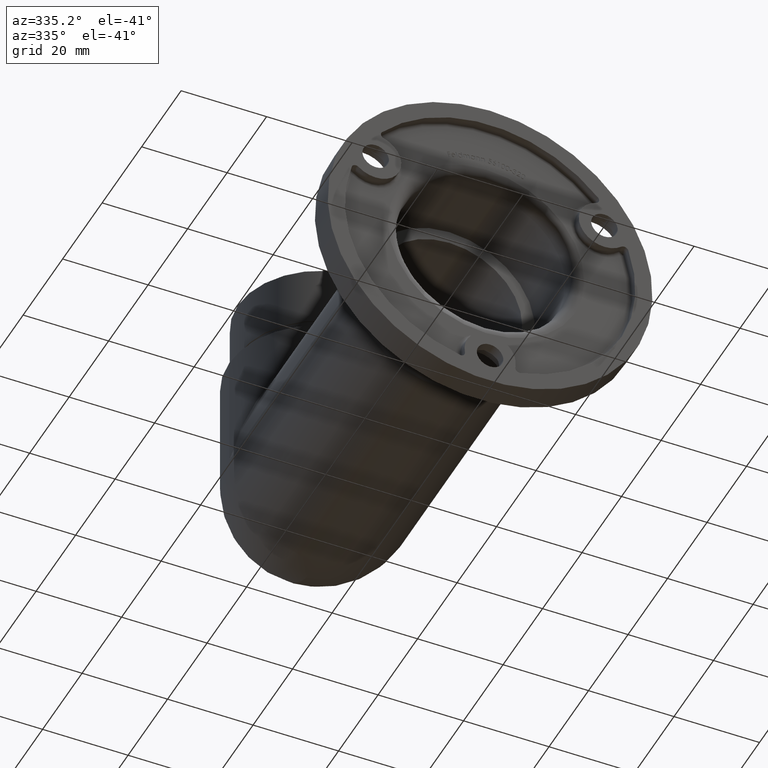
[diagram: clean part render]
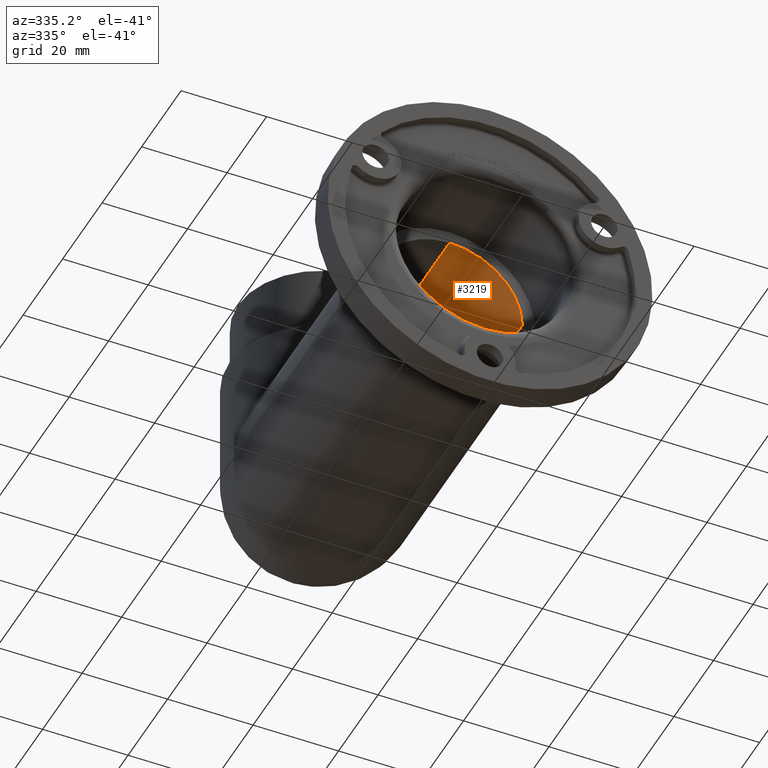
[diagram: same view with one face highlighted and labeled with its STEP entity id]
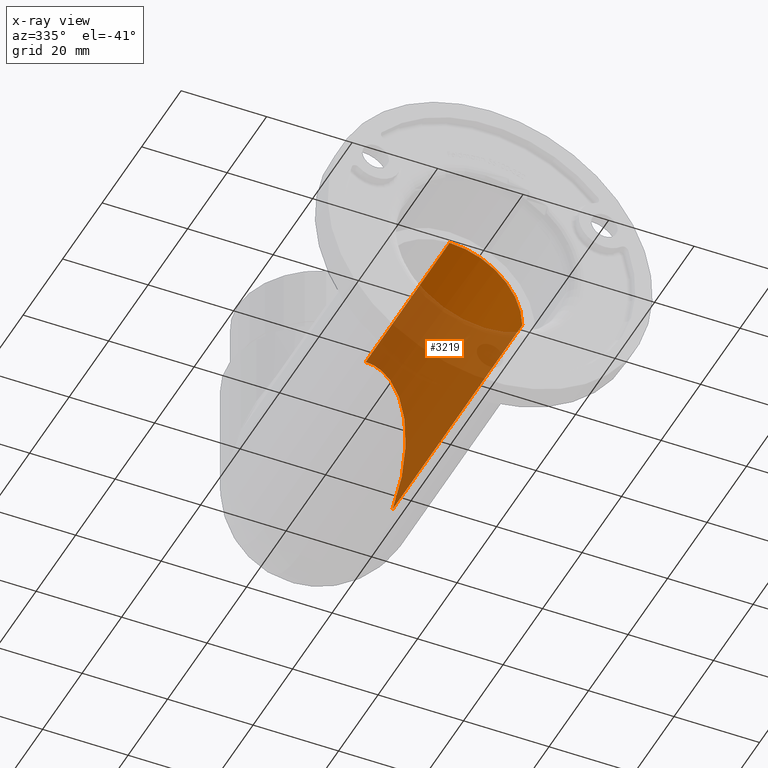
[diagram: x-ray of the same camera — body ghosted, the highlighted face saturated]
A machine part, auxiliary view. The second image highlights one B-rep face of the part: STEP entity #3219.
The next image is the same camera in x-ray: the body ghosted, the highlighted face saturated — about 71% of this face is hidden behind the body in this view.
In plain terms, the highlighted cylindrical surface (partial cylindrical patch) has radius 17 mm, axis along (0, -1, 0).
Its self-contained STEP definition (entity closure, byte-faithful):
#101 = AXIS2_PLACEMENT_3D ( 'NONE', #4424, #10111, #5448 ) ;
#1103 =( BOUNDED_CURVE ( )  B_SPLINE_CURVE ( 3, ( #5344, #6467, #14779, #1677 ),
 .UNSPECIFIED., .F., .F. ) 
 B_SPLINE_CURVE_WITH_KNOTS ( ( 4, 4 ),
 ( 4.712388980384689700, 6.283185307179586200 ),
 .UNSPECIFIED. ) 
 CURVE ( )  GEOMETRIC_REPRESENTATION_ITEM ( )  RATIONAL_B_SPLINE_CURVE ( ( 1.000000000000000000, 0.8047378541243649400, 0.8047378541243649400, 1.000000000000000000 ) ) 
 REPRESENTATION_ITEM ( '' )  );
#1113 = DIRECTION ( 'NONE',  ( 0.0000000000000000000, -1.000000000000000000, 4.468514952174560100E-033 ) ) ;
#1293 = ORIENTED_EDGE ( 'NONE', *, *, #8847, .F. ) ;
#1470 = LINE ( 'NONE', #6932, #13236 ) ;
#1677 = CARTESIAN_POINT ( 'NONE',  ( 7.286069986480922000E-015, 63.00000000000002800, 16.99999999999999600 ) ) ;
#2035 = DIRECTION ( 'NONE',  ( -8.881784197001252300E-016, 0.0000000000000000000, -1.000000000000000000 ) ) ;
#2293 = CARTESIAN_POINT ( 'NONE',  ( 7.286069986480922000E-015, 63.00000000000002800, 16.99999999999999600 ) ) ;
#2410 = DIRECTION ( 'NONE',  ( -0.0000000000000000000, 1.000000000000000000, -4.468514952174560100E-033 ) ) ;
#2844 = FACE_OUTER_BOUND ( 'NONE', #12430, .T. ) ;
#2969 = AXIS2_PLACEMENT_3D ( 'NONE', #7964, #10161, #2035 ) ;
#3219 = ADVANCED_FACE ( 'NONE', ( #2844 ), #12391, .F. ) ;
#3233 = EDGE_CURVE ( 'NONE', #5713, #13655, #6160, .T. ) ;
#4313 = VERTEX_POINT ( 'NONE', #13787 ) ;
#4424 = CARTESIAN_POINT ( 'NONE',  ( 5.204170427930421300E-015, 146.1626550446192400, -3.469446951953614200E-015 ) ) ;
#5083 = CARTESIAN_POINT ( 'NONE',  ( 7.286069986480922000E-015, 20.49999999999998900, 16.99999999999999600 ) ) ;
#5344 = CARTESIAN_POINT ( 'NONE',  ( 17.00000000000000700, 86.20000000000003100, 6.938893903907228400E-015 ) ) ;
#5381 = ORIENTED_EDGE ( 'NONE', *, *, #9726, .F. ) ;
#5448 = DIRECTION ( 'NONE',  ( 0.0000000000000000000, 0.0000000000000000000, -1.000000000000000000 ) ) ;
#5713 = VERTEX_POINT ( 'NONE', #5083 ) ;
#6160 = CIRCLE ( 'NONE', #2969, 17.00000000000000000 ) ;
#6467 = CARTESIAN_POINT ( 'NONE',  ( 17.00000000000000400, 72.60975464705583700, 9.958369439657378300 ) ) ;
#6932 = CARTESIAN_POINT ( 'NONE',  ( 7.286069986480922000E-015, 146.1626550446192400, 16.99999999999999600 ) ) ;
#7964 = CARTESIAN_POINT ( 'NONE',  ( 5.204170427930421300E-015, 20.49999999999998900, -3.469446951953613800E-015 ) ) ;
#8847 = EDGE_CURVE ( 'NONE', #13655, #4313, #12112, .T. ) ;
#9003 = VECTOR ( 'NONE', #2410, 1000.000000000000000 ) ;
#9327 = CARTESIAN_POINT ( 'NONE',  ( 17.00000000000000700, 20.49999999999998900, 3.101627728201948000E-015 ) ) ;
#9518 = EDGE_CURVE ( 'NONE', #4313, #13030, #1103, .T. ) ;
#9556 = CARTESIAN_POINT ( 'NONE',  ( 17.00000000000000700, 146.1626550446192400, -7.356384475033318900E-016 ) ) ;
#9726 = EDGE_CURVE ( 'NONE', #13030, #5713, #1470, .T. ) ;
#10111 = DIRECTION ( 'NONE',  ( 0.0000000000000000000, -1.000000000000000000, 4.468514952174560100E-033 ) ) ;
#10161 = DIRECTION ( 'NONE',  ( -0.0000000000000000000, 1.000000000000000000, -0.0000000000000000000 ) ) ;
#10619 = ORIENTED_EDGE ( 'NONE', *, *, #9518, .F. ) ;
#12009 = ORIENTED_EDGE ( 'NONE', *, *, #3233, .F. ) ;
#12112 = LINE ( 'NONE', #9556, #9003 ) ;
#12391 = CYLINDRICAL_SURFACE ( 'NONE', #101, 17.00000000000000000 ) ;
#12430 = EDGE_LOOP ( 'NONE', ( #12009, #5381, #10619, #1293 ) ) ;
#13030 = VERTEX_POINT ( 'NONE', #2293 ) ;
#13236 = VECTOR ( 'NONE', #1113, 1000.000000000000000 ) ;
#13655 = VERTEX_POINT ( 'NONE', #9327 ) ;
#13787 = CARTESIAN_POINT ( 'NONE',  ( 17.00000000000000700, 86.20000000000003100, 6.938893903907228400E-015 ) ) ;
#14779 = CARTESIAN_POINT ( 'NONE',  ( 9.958369439657389000, 63.00000000000002800, 16.99999999999999600 ) ) ;